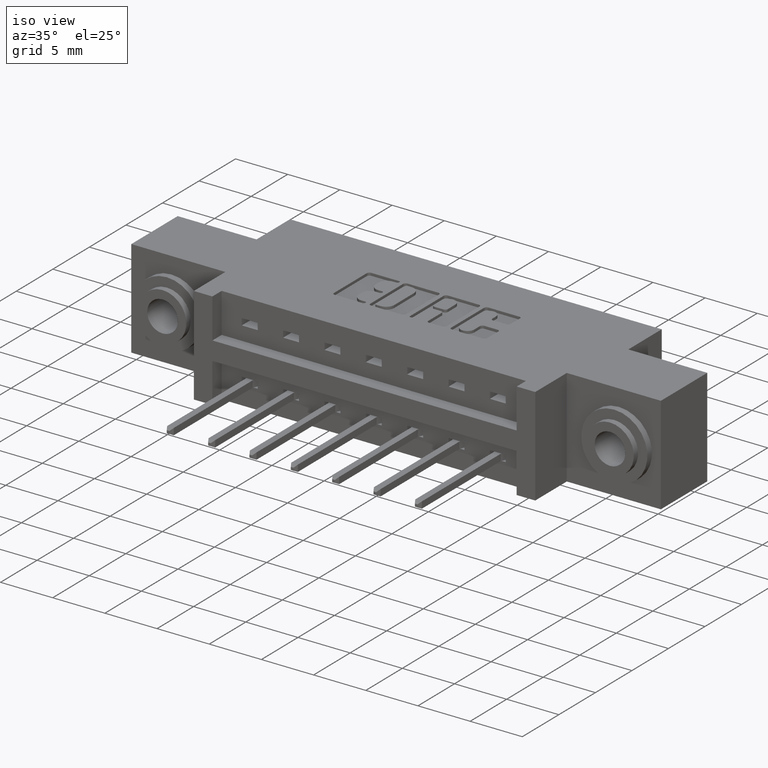
[diagram: clean part render]
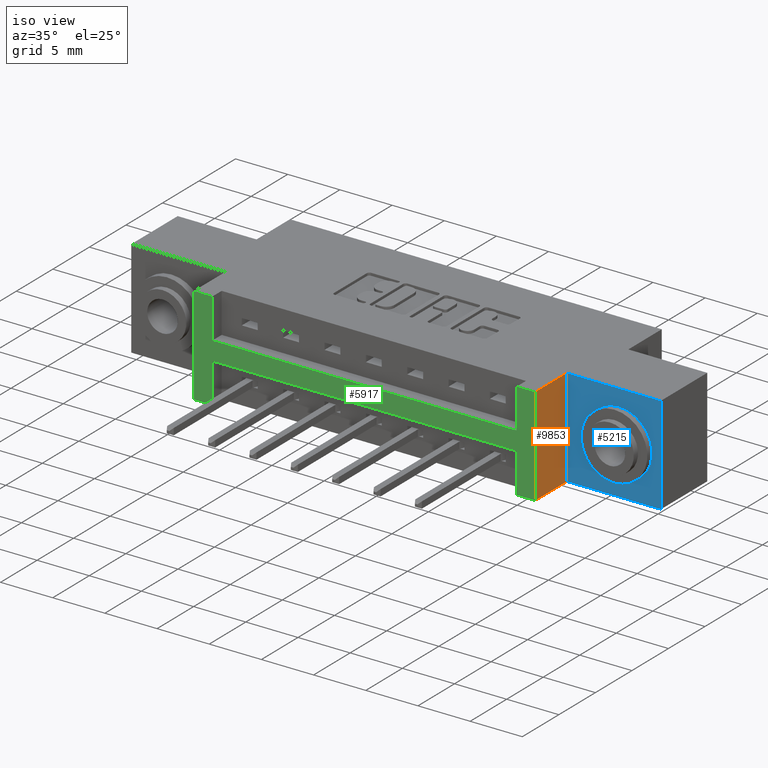
[diagram: same view with three faces highlighted in distinct colors, each labeled with its STEP entity id]
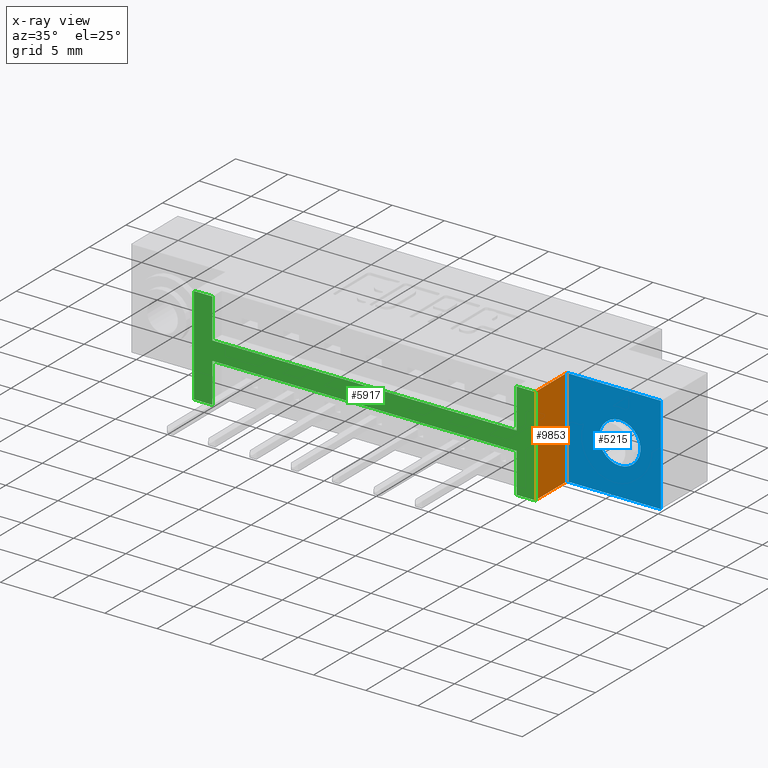
[diagram: x-ray of the same camera — body ghosted, the three highlighted faces saturated]
A machine part, iso view with three faces highlighted in distinct colors.
The next image is the same camera in x-ray (body ghosted, the three faces saturated) — at least one of them is partly hidden behind the body in this view.
Their STEP definitions:

[orange] entity #9853 — the highlighted planar face has unit normal (-1, 0, 0).
#298 = VERTEX_POINT ( 'NONE', #2605 ) ;
#784 = PLANE ( 'NONE',  #2840 ) ;
#1005 = DIRECTION ( 'NONE',  ( -0.0000000000000000000, -1.000000000000000000, -0.0000000000000000000 ) ) ;
#1568 = CARTESIAN_POINT ( 'NONE',  ( 1.643000000000000000, 0.1699999999999999800, 1.577345077301791100E-016 ) ) ;
#1625 = DIRECTION ( 'NONE',  ( 0.0000000000000000000, 0.0000000000000000000, 1.000000000000000000 ) ) ;
#1806 = VERTEX_POINT ( 'NONE', #3932 ) ;
#2045 = CARTESIAN_POINT ( 'NONE',  ( 1.643000000000000000, 0.0000000000000000000, 1.577345077301791100E-016 ) ) ;
#2188 = CARTESIAN_POINT ( 'NONE',  ( 1.643000000000000000, 0.1699999999999999800, 1.577345077301791100E-016 ) ) ;
#2238 = EDGE_CURVE ( 'NONE', #1806, #10220, #6767, .T. ) ;
#2582 = VECTOR ( 'NONE', #9674, 39.37007874015748100 ) ;
#2605 = CARTESIAN_POINT ( 'NONE',  ( 1.643000000000000000, 0.0000000000000000000, -0.3699999999999998800 ) ) ;
#2840 = AXIS2_PLACEMENT_3D ( 'NONE', #8164, #7387, #1625 ) ;
#3369 = VERTEX_POINT ( 'NONE', #4215 ) ;
#3826 = VECTOR ( 'NONE', #5235, 39.37007874015748100 ) ;
#3932 = CARTESIAN_POINT ( 'NONE',  ( 1.643000000000000000, 0.1699999999999999800, 1.577345077301791100E-016 ) ) ;
#4000 = LINE ( 'NONE', #1568, #2582 ) ;
#4215 = CARTESIAN_POINT ( 'NONE',  ( 1.643000000000000000, 0.0000000000000000000, 0.0000000000000000000 ) ) ;
#4306 = CARTESIAN_POINT ( 'NONE',  ( 1.643000000000000000, 0.1699999999999999800, -0.3699999999999998800 ) ) ;
#4547 = ORIENTED_EDGE ( 'NONE', *, *, #6796, .F. ) ;
#4652 = EDGE_LOOP ( 'NONE', ( #8810, #4547, #8503, #7423 ) ) ;
#4984 = EDGE_CURVE ( 'NONE', #3369, #298, #5961, .T. ) ;
#5235 = DIRECTION ( 'NONE',  ( 0.0000000000000000000, 0.0000000000000000000, -1.000000000000000000 ) ) ;
#5303 = VECTOR ( 'NONE', #1005, 39.37007874015748100 ) ;
#5461 = FACE_OUTER_BOUND ( 'NONE', #4652, .T. ) ;
#5961 = LINE ( 'NONE', #2045, #3826 ) ;
#5993 = VECTOR ( 'NONE', #7810, 39.37007874015748100 ) ;
#6686 = LINE ( 'NONE', #4306, #5303 ) ;
#6767 = LINE ( 'NONE', #2188, #5993 ) ;
#6796 = EDGE_CURVE ( 'NONE', #10220, #298, #6686, .T. ) ;
#7387 = DIRECTION ( 'NONE',  ( -1.000000000000000000, 0.0000000000000000000, 0.0000000000000000000 ) ) ;
#7423 = ORIENTED_EDGE ( 'NONE', *, *, #8257, .T. ) ;
#7810 = DIRECTION ( 'NONE',  ( 0.0000000000000000000, 0.0000000000000000000, -1.000000000000000000 ) ) ;
#8164 = CARTESIAN_POINT ( 'NONE',  ( 1.643000000000000000, 0.1699999999999999800, 1.577345077301791100E-016 ) ) ;
#8257 = EDGE_CURVE ( 'NONE', #1806, #3369, #4000, .T. ) ;
#8503 = ORIENTED_EDGE ( 'NONE', *, *, #2238, .F. ) ;
#8810 = ORIENTED_EDGE ( 'NONE', *, *, #4984, .T. ) ;
#9386 = CARTESIAN_POINT ( 'NONE',  ( 1.643000000000000000, 0.1699999999999999800, -0.3699999999999998800 ) ) ;
#9674 = DIRECTION ( 'NONE',  ( -0.0000000000000000000, -1.000000000000000000, -0.0000000000000000000 ) ) ;
#9853 = ADVANCED_FACE ( 'NONE', ( #5461 ), #784, .F. ) ;
#10220 = VERTEX_POINT ( 'NONE', #9386 ) ;

[blue] entity #5215 — the highlighted planar face has unit normal (0, -1, 0).
#191 = DIRECTION ( 'NONE',  ( 1.000000000000000000, -0.0000000000000000000, 3.847673230513044900E-016 ) ) ;
#1143 = VECTOR ( 'NONE', #7097, 39.37007874015748100 ) ;
#1806 = VERTEX_POINT ( 'NONE', #3932 ) ;
#2188 = CARTESIAN_POINT ( 'NONE',  ( 1.643000000000000000, 0.1699999999999999800, 1.577345077301791100E-016 ) ) ;
#2238 = EDGE_CURVE ( 'NONE', #1806, #10220, #6767, .T. ) ;
#2404 = CIRCLE ( 'NONE', #9648, 0.07800000000000009700 ) ;
#2539 = CARTESIAN_POINT ( 'NONE',  ( 1.998000000000000000, 0.1699999999999999800, -0.3699999999999997200 ) ) ;
#2558 = DIRECTION ( 'NONE',  ( 0.0000000000000000000, -1.000000000000000000, -0.0000000000000000000 ) ) ;
#2629 = CARTESIAN_POINT ( 'NONE',  ( 1.843000000000000000, 0.1699999999999999800, -0.1850000000000000000 ) ) ;
#2827 = LINE ( 'NONE', #8699, #1143 ) ;
#3193 = EDGE_CURVE ( 'NONE', #3973, #6725, #2827, .T. ) ;
#3238 = PLANE ( 'NONE',  #4661 ) ;
#3246 = CARTESIAN_POINT ( 'NONE',  ( 1.998000000000000000, 0.1699999999999999800, 2.446844304696412000E-016 ) ) ;
#3311 = ORIENTED_EDGE ( 'NONE', *, *, #3193, .T. ) ;
#3339 = EDGE_CURVE ( 'NONE', #10220, #3973, #5008, .T. ) ;
#3539 = CARTESIAN_POINT ( 'NONE',  ( 1.843000000000000000, 0.1699999999999999800, -0.1850000000000000000 ) ) ;
#3604 = CARTESIAN_POINT ( 'NONE',  ( 1.843000000000000000, 0.1699999999999999800, -0.2630000000000001200 ) ) ;
#3915 = LINE ( 'NONE', #3246, #4164 ) ;
#3932 = CARTESIAN_POINT ( 'NONE',  ( 1.643000000000000000, 0.1699999999999999800, 1.577345077301791100E-016 ) ) ;
#3959 = ORIENTED_EDGE ( 'NONE', *, *, #3339, .T. ) ;
#3973 = VERTEX_POINT ( 'NONE', #2539 ) ;
#4021 = CARTESIAN_POINT ( 'NONE',  ( 1.998000000000000000, 0.1699999999999999800, -0.3699999999999997200 ) ) ;
#4164 = VECTOR ( 'NONE', #8248, 39.37007874015748100 ) ;
#4387 = CARTESIAN_POINT ( 'NONE',  ( 1.843000000000000000, 0.1699999999999999800, -0.1069999999999999300 ) ) ;
#4465 = EDGE_CURVE ( 'NONE', #6280, #7413, #7650, .T. ) ;
#4504 = EDGE_LOOP ( 'NONE', ( #9709, #10141, #3959, #3311 ) ) ;
#4546 = ORIENTED_EDGE ( 'NONE', *, *, #4465, .F. ) ;
#4661 = AXIS2_PLACEMENT_3D ( 'NONE', #6491, #8062, #7288 ) ;
#5008 = LINE ( 'NONE', #4021, #8071 ) ;
#5215 = ADVANCED_FACE ( 'NONE', ( #10393, #5331 ), #3238, .T. ) ;
#5331 = FACE_OUTER_BOUND ( 'NONE', #4504, .T. ) ;
#5338 = EDGE_CURVE ( 'NONE', #7413, #6280, #2404, .T. ) ;
#5877 = AXIS2_PLACEMENT_3D ( 'NONE', #3539, #7604, #9252 ) ;
#5993 = VECTOR ( 'NONE', #7810, 39.37007874015748100 ) ;
#6280 = VERTEX_POINT ( 'NONE', #4387 ) ;
#6491 = CARTESIAN_POINT ( 'NONE',  ( 1.643000000000000000, 0.1699999999999999800, 1.577345077301791100E-016 ) ) ;
#6598 = EDGE_CURVE ( 'NONE', #6725, #1806, #3915, .T. ) ;
#6725 = VERTEX_POINT ( 'NONE', #6747 ) ;
#6747 = CARTESIAN_POINT ( 'NONE',  ( 1.998000000000000000, 0.1699999999999999800, 2.446844304696412000E-016 ) ) ;
#6767 = LINE ( 'NONE', #2188, #5993 ) ;
#7097 = DIRECTION ( 'NONE',  ( -0.0000000000000000000, -0.0000000000000000000, 1.000000000000000000 ) ) ;
#7288 = DIRECTION ( 'NONE',  ( 0.0000000000000000000, 0.0000000000000000000, -1.000000000000000000 ) ) ;
#7413 = VERTEX_POINT ( 'NONE', #3604 ) ;
#7604 = DIRECTION ( 'NONE',  ( 0.0000000000000000000, -1.000000000000000000, -0.0000000000000000000 ) ) ;
#7650 = CIRCLE ( 'NONE', #5877, 0.07800000000000009700 ) ;
#7810 = DIRECTION ( 'NONE',  ( 0.0000000000000000000, 0.0000000000000000000, -1.000000000000000000 ) ) ;
#8062 = DIRECTION ( 'NONE',  ( 0.0000000000000000000, -1.000000000000000000, 0.0000000000000000000 ) ) ;
#8071 = VECTOR ( 'NONE', #191, 39.37007874015748100 ) ;
#8248 = DIRECTION ( 'NONE',  ( -1.000000000000000000, 0.0000000000000000000, -2.449293598294705400E-016 ) ) ;
#8528 = EDGE_LOOP ( 'NONE', ( #4546, #9243 ) ) ;
#8699 = CARTESIAN_POINT ( 'NONE',  ( 1.998000000000000000, 0.1699999999999999800, 2.446844304696412000E-016 ) ) ;
#9048 = DIRECTION ( 'NONE',  ( 0.0000000000000000000, 0.0000000000000000000, -1.000000000000000000 ) ) ;
#9243 = ORIENTED_EDGE ( 'NONE', *, *, #5338, .F. ) ;
#9252 = DIRECTION ( 'NONE',  ( 0.0000000000000000000, 0.0000000000000000000, -1.000000000000000000 ) ) ;
#9386 = CARTESIAN_POINT ( 'NONE',  ( 1.643000000000000000, 0.1699999999999999800, -0.3699999999999998800 ) ) ;
#9648 = AXIS2_PLACEMENT_3D ( 'NONE', #2629, #2558, #9048 ) ;
#9709 = ORIENTED_EDGE ( 'NONE', *, *, #6598, .T. ) ;
#10141 = ORIENTED_EDGE ( 'NONE', *, *, #2238, .T. ) ;
#10220 = VERTEX_POINT ( 'NONE', #9386 ) ;
#10393 = FACE_BOUND ( 'NONE', #8528, .T. ) ;

[green] entity #5917 — the highlighted planar face has unit normal (0, -1, 0).
#33 = VERTEX_POINT ( 'NONE', #3505 ) ;
#81 = VECTOR ( 'NONE', #9282, 39.37007874015748100 ) ;
#109 = ORIENTED_EDGE ( 'NONE', *, *, #1458, .F. ) ;
#298 = VERTEX_POINT ( 'NONE', #2605 ) ;
#560 = ORIENTED_EDGE ( 'NONE', *, *, #4984, .F. ) ;
#864 = EDGE_CURVE ( 'NONE', #8358, #4269, #10192, .T. ) ;
#883 = CARTESIAN_POINT ( 'NONE',  ( 0.0000000000000000000, 0.0000000000000000000, -0.3700000000000001600 ) ) ;
#921 = DIRECTION ( 'NONE',  ( 0.0000000000000000000, -0.0000000000000000000, -1.000000000000000000 ) ) ;
#960 = VERTEX_POINT ( 'NONE', #9197 ) ;
#973 = VECTOR ( 'NONE', #9041, 39.37007874015748100 ) ;
#1108 = CARTESIAN_POINT ( 'NONE',  ( 1.573000000000000200, 0.0000000000000000000, -0.2200000000000000000 ) ) ;
#1458 = EDGE_CURVE ( 'NONE', #960, #3369, #2032, .T. ) ;
#1856 = CARTESIAN_POINT ( 'NONE',  ( 0.0000000000000000000, 0.0000000000000000000, 0.0000000000000000000 ) ) ;
#1986 = DIRECTION ( 'NONE',  ( -0.0000000000000000000, -0.0000000000000000000, 1.000000000000000000 ) ) ;
#2032 = LINE ( 'NONE', #9943, #4865 ) ;
#2045 = CARTESIAN_POINT ( 'NONE',  ( 1.643000000000000000, 0.0000000000000000000, 1.577345077301791100E-016 ) ) ;
#2243 = LINE ( 'NONE', #6938, #7597 ) ;
#2391 = ORIENTED_EDGE ( 'NONE', *, *, #3776, .F. ) ;
#2427 = VERTEX_POINT ( 'NONE', #7217 ) ;
#2437 = CARTESIAN_POINT ( 'NONE',  ( 0.3549999999999999800, 0.0000000000000000000, 0.0000000000000000000 ) ) ;
#2508 = DIRECTION ( 'NONE',  ( 1.000000000000000000, 0.0000000000000000000, 0.0000000000000000000 ) ) ;
#2605 = CARTESIAN_POINT ( 'NONE',  ( 1.643000000000000000, 0.0000000000000000000, -0.3699999999999998800 ) ) ;
#2661 = CARTESIAN_POINT ( 'NONE',  ( 0.3549999999999999800, 0.0000000000000000000, 0.0000000000000000000 ) ) ;
#2829 = CARTESIAN_POINT ( 'NONE',  ( 0.0000000000000000000, 0.0000000000000000000, -0.3700000000000001600 ) ) ;
#2891 = DIRECTION ( 'NONE',  ( 0.0000000000000000000, 0.0000000000000000000, 1.000000000000000000 ) ) ;
#2900 = LINE ( 'NONE', #2437, #8415 ) ;
#3069 = VERTEX_POINT ( 'NONE', #10255 ) ;
#3206 = EDGE_CURVE ( 'NONE', #4966, #3069, #4897, .T. ) ;
#3213 = VECTOR ( 'NONE', #6050, 39.37007874015748100 ) ;
#3369 = VERTEX_POINT ( 'NONE', #4215 ) ;
#3448 = VECTOR ( 'NONE', #6542, 39.37007874015748100 ) ;
#3505 = CARTESIAN_POINT ( 'NONE',  ( 0.3550000000000000400, 0.0000000000000000000, -0.3700000000000001600 ) ) ;
#3705 = VERTEX_POINT ( 'NONE', #3906 ) ;
#3776 = EDGE_CURVE ( 'NONE', #3069, #2427, #6489, .T. ) ;
#3826 = VECTOR ( 'NONE', #5235, 39.37007874015748100 ) ;
#3906 = CARTESIAN_POINT ( 'NONE',  ( 1.573000000000000200, 0.0000000000000000000, -0.3700000000000000000 ) ) ;
#4108 = CARTESIAN_POINT ( 'NONE',  ( 0.4249999999999999900, 0.0000000000000000000, -0.3700000000000000000 ) ) ;
#4215 = CARTESIAN_POINT ( 'NONE',  ( 1.643000000000000000, 0.0000000000000000000, 0.0000000000000000000 ) ) ;
#4269 = VERTEX_POINT ( 'NONE', #4707 ) ;
#4312 = LINE ( 'NONE', #9078, #973 ) ;
#4388 = AXIS2_PLACEMENT_3D ( 'NONE', #883, #6590, #921 ) ;
#4484 = ORIENTED_EDGE ( 'NONE', *, *, #6448, .F. ) ;
#4634 = VERTEX_POINT ( 'NONE', #9565 ) ;
#4637 = EDGE_LOOP ( 'NONE', ( #560, #109, #5922, #7828, #9898, #10215, #5841, #6734, #2391, #5442, #4484, #8351 ) ) ;
#4707 = CARTESIAN_POINT ( 'NONE',  ( 0.4249999999999999300, 0.0000000000000000000, 0.0000000000000000000 ) ) ;
#4709 = LINE ( 'NONE', #10114, #81 ) ;
#4767 = VERTEX_POINT ( 'NONE', #10435 ) ;
#4865 = VECTOR ( 'NONE', #2508, 39.37007874015748100 ) ;
#4897 = LINE ( 'NONE', #4911, #9831 ) ;
#4911 = CARTESIAN_POINT ( 'NONE',  ( 0.4249999999999999900, 0.0000000000000000000, -0.2200000000000000000 ) ) ;
#4966 = VERTEX_POINT ( 'NONE', #1108 ) ;
#4984 = EDGE_CURVE ( 'NONE', #3369, #298, #5961, .T. ) ;
#5235 = DIRECTION ( 'NONE',  ( 0.0000000000000000000, 0.0000000000000000000, -1.000000000000000000 ) ) ;
#5442 = ORIENTED_EDGE ( 'NONE', *, *, #3206, .F. ) ;
#5507 = LINE ( 'NONE', #2829, #3213 ) ;
#5554 = LINE ( 'NONE', #6162, #9630 ) ;
#5841 = ORIENTED_EDGE ( 'NONE', *, *, #10063, .F. ) ;
#5917 = ADVANCED_FACE ( 'NONE', ( #9536 ), #6624, .T. ) ;
#5922 = ORIENTED_EDGE ( 'NONE', *, *, #9437, .F. ) ;
#5940 = CARTESIAN_POINT ( 'NONE',  ( 1.573000000000000200, 0.0000000000000000000, 0.0000000000000000000 ) ) ;
#5961 = LINE ( 'NONE', #2045, #3826 ) ;
#6050 = DIRECTION ( 'NONE',  ( -1.000000000000000000, -0.0000000000000000000, -6.836456440601259400E-017 ) ) ;
#6162 = CARTESIAN_POINT ( 'NONE',  ( 0.0000000000000000000, 0.0000000000000000000, -0.3700000000000001600 ) ) ;
#6448 = EDGE_CURVE ( 'NONE', #3705, #4966, #2243, .T. ) ;
#6469 = VECTOR ( 'NONE', #1986, 39.37007874015748100 ) ;
#6489 = LINE ( 'NONE', #4108, #3448 ) ;
#6507 = DIRECTION ( 'NONE',  ( -1.845843238962339800E-016, -0.0000000000000000000, 1.000000000000000000 ) ) ;
#6542 = DIRECTION ( 'NONE',  ( -0.0000000000000000000, -0.0000000000000000000, -1.000000000000000000 ) ) ;
#6590 = DIRECTION ( 'NONE',  ( 0.0000000000000000000, -1.000000000000000000, 0.0000000000000000000 ) ) ;
#6624 = PLANE ( 'NONE',  #4388 ) ;
#6734 = ORIENTED_EDGE ( 'NONE', *, *, #7069, .F. ) ;
#6938 = CARTESIAN_POINT ( 'NONE',  ( 1.573000000000000200, 0.0000000000000000000, -0.3700000000000000000 ) ) ;
#7069 = EDGE_CURVE ( 'NONE', #2427, #33, #5554, .T. ) ;
#7144 = VECTOR ( 'NONE', #9162, 39.37007874015748100 ) ;
#7217 = CARTESIAN_POINT ( 'NONE',  ( 0.4249999999999999900, 0.0000000000000000000, -0.3700000000000000000 ) ) ;
#7346 = DIRECTION ( 'NONE',  ( -1.000000000000000000, -0.0000000000000000000, -0.0000000000000000000 ) ) ;
#7597 = VECTOR ( 'NONE', #2891, 39.37007874015748100 ) ;
#7828 = ORIENTED_EDGE ( 'NONE', *, *, #9929, .F. ) ;
#8351 = ORIENTED_EDGE ( 'NONE', *, *, #8457, .F. ) ;
#8358 = VERTEX_POINT ( 'NONE', #2661 ) ;
#8415 = VECTOR ( 'NONE', #6507, 39.37007874015748100 ) ;
#8457 = EDGE_CURVE ( 'NONE', #298, #3705, #5507, .T. ) ;
#8553 = LINE ( 'NONE', #5940, #6469 ) ;
#9041 = DIRECTION ( 'NONE',  ( 1.000000000000000000, 0.0000000000000000000, 0.0000000000000000000 ) ) ;
#9078 = CARTESIAN_POINT ( 'NONE',  ( 0.4249999999999999300, 0.0000000000000000000, -0.1499999999999999900 ) ) ;
#9162 = DIRECTION ( 'NONE',  ( 1.000000000000000000, 0.0000000000000000000, 0.0000000000000000000 ) ) ;
#9197 = CARTESIAN_POINT ( 'NONE',  ( 1.573000000000000200, 0.0000000000000000000, 0.0000000000000000000 ) ) ;
#9282 = DIRECTION ( 'NONE',  ( 0.0000000000000000000, 0.0000000000000000000, -1.000000000000000000 ) ) ;
#9367 = EDGE_CURVE ( 'NONE', #4269, #4634, #4709, .T. ) ;
#9437 = EDGE_CURVE ( 'NONE', #4767, #960, #8553, .T. ) ;
#9536 = FACE_OUTER_BOUND ( 'NONE', #4637, .T. ) ;
#9546 = DIRECTION ( 'NONE',  ( -1.000000000000000000, -0.0000000000000000000, -6.836456440601259400E-017 ) ) ;
#9565 = CARTESIAN_POINT ( 'NONE',  ( 0.4249999999999999300, 0.0000000000000000000, -0.1499999999999999900 ) ) ;
#9630 = VECTOR ( 'NONE', #9546, 39.37007874015748100 ) ;
#9831 = VECTOR ( 'NONE', #7346, 39.37007874015748100 ) ;
#9898 = ORIENTED_EDGE ( 'NONE', *, *, #9367, .F. ) ;
#9929 = EDGE_CURVE ( 'NONE', #4634, #4767, #4312, .T. ) ;
#9943 = CARTESIAN_POINT ( 'NONE',  ( 0.0000000000000000000, 0.0000000000000000000, 0.0000000000000000000 ) ) ;
#10063 = EDGE_CURVE ( 'NONE', #33, #8358, #2900, .T. ) ;
#10114 = CARTESIAN_POINT ( 'NONE',  ( 0.4249999999999999300, 0.0000000000000000000, 0.0000000000000000000 ) ) ;
#10192 = LINE ( 'NONE', #1856, #7144 ) ;
#10215 = ORIENTED_EDGE ( 'NONE', *, *, #864, .F. ) ;
#10255 = CARTESIAN_POINT ( 'NONE',  ( 0.4249999999999999900, 0.0000000000000000000, -0.2200000000000000000 ) ) ;
#10435 = CARTESIAN_POINT ( 'NONE',  ( 1.573000000000000200, 0.0000000000000000000, -0.1499999999999999900 ) ) ;